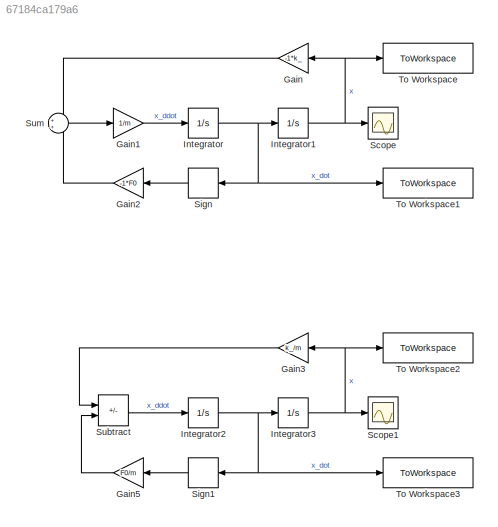
MODEL slx_67184ca179a6
KIND model
CONFIG AbsTol = auto
CONFIG EnableMultiTasking = off
CONFIG FixedStep = auto
CONFIG MaxStep = auto
CONFIG MinStep = auto
CONFIG RelTol = 1e-5
CONFIG SampleTimeConstraint = Unconstrained
CONFIG SolverName = VariableStepAuto
CONFIG StartTime = 0.0
CONFIG StopTime = t_sim
BLOCK [Gain] Gain
  Gain = -1*k_
BLOCK [Gain] Gain1
  Gain = 1/m
BLOCK [Gain] Gain2
  Gain = -1*F0
BLOCK [Gain] Gain3
  Commented = on
  Gain = k_/m
BLOCK [Gain] Gain5
  Commented = on
  Gain = F0/m
BLOCK [Integrator] Integrator
  InitialCondition = xdot_0
  LimitOutput = on
  LowerSaturationLimit = -100
  Ports = [1, 1]
  UpperSaturationLimit = 100
BLOCK [Integrator] Integrator1
  InitialCondition = x_0
  LimitOutput = on
  LowerSaturationLimit = -100
  Ports = [1, 1]
  UpperSaturationLimit = 100
BLOCK [Integrator] Integrator2
  Commented = on
  InitialCondition = xdot_0
  Ports = [1, 1]
  UpperSaturationLimit = 100
BLOCK [Integrator] Integrator3
  Commented = on
  InitialCondition = x_0
  LowerSaturationLimit = -100
  Ports = [1, 1]
  UpperSaturationLimit = 100
BLOCK [Scope] Scope
  Floating = off
  NumInputPorts = 1
  Ports = [1]
  ScopeSpecificationString = Simulink.scopes.TimeScopeBlockCfg('CurrentConfiguration', extmgr.ConfigurationSet(extmgr.Configuration('Core','General UI',true),extmgr.Configuration('Core','Source UI',true),extmgr.Configuration('Sources','WiredSimulink',true),extmgr.Configuration('Visuals','Time Domain',true),extmgr.Configuration('Tools','Plot Navigation',true),extmgr.Configuration('Tools','Measurements',true)),'Version','2020b'...<+1ch>
BLOCK [Scope] Scope1
  Commented = on
  Floating = off
  NumInputPorts = 1
  Ports = [1]
  ScopeSpecificationString = Simulink.scopes.TimeScopeBlockCfg('CurrentConfiguration', extmgr.ConfigurationSet(extmgr.Configuration('Core','General UI',true),extmgr.Configuration('Core','Source UI',true),extmgr.Configuration('Sources','WiredSimulink',true,'DataLoggingVariableName','ScopeData1'),extmgr.Configuration('Visuals','Time Domain',true),extmgr.Configuration('Tools','Plot Navigation',true),extmgr.Configuration('Tools',...<+40ch>
BLOCK [Signum] Sign
  ZeroCross = off
BLOCK [Signum] Sign1
  Commented = on
  ZeroCross = off
BLOCK [Sum] Subtract
  Commented = on
  IconShape = rectangular
  Inputs = --
  Ports = [2, 1]
BLOCK [Sum] Sum
  Ports = [2, 1]
BLOCK [ToWorkspace] To Workspace
  FixptAsFi = on
  MaxDataPoints = inf
  Ports = [1]
  SampleTime = -1
  SaveFormat = Timeseries
  VariableName = x_pos
BLOCK [ToWorkspace] To Workspace1
  FixptAsFi = on
  MaxDataPoints = inf
  Ports = [1]
  SampleTime = -1
  SaveFormat = Timeseries
  VariableName = x_dot
BLOCK [ToWorkspace] To Workspace2
  Commented = on
  FixptAsFi = on
  MaxDataPoints = inf
  Ports = [1]
  SampleTime = -1
  SaveFormat = Timeseries
  VariableName = x_pos
BLOCK [ToWorkspace] To Workspace3
  Commented = on
  FixptAsFi = on
  MaxDataPoints = inf
  Ports = [1]
  SampleTime = -1
  SaveFormat = Timeseries
  VariableName = x_dot
LINE Gain1:1 -> Integrator:1
LINE Gain2:1 -> Sum:2
LINE Gain3:1 -> Subtract:1
LINE Gain5:1 -> Subtract:2
LINE Gain:1 -> Sum:1
NET Integrator1:1 -> Gain:1, Scope:1, To Workspace:1
NET Integrator2:1 -> Integrator3:1, Sign1:1, To Workspace3:1
NET Integrator3:1 -> Gain3:1, Scope1:1, To Workspace2:1
NET Integrator:1 -> Integrator1:1, Sign:1, To Workspace1:1
LINE Sign1:1 -> Gain5:1
LINE Sign:1 -> Gain2:1
LINE Subtract:1 -> Integrator2:1
LINE Sum:1 -> Gain1:1
note: NET lines group one-source signal fan-out (src -> all destinations, sorted); 1:1 wires keep LINE
